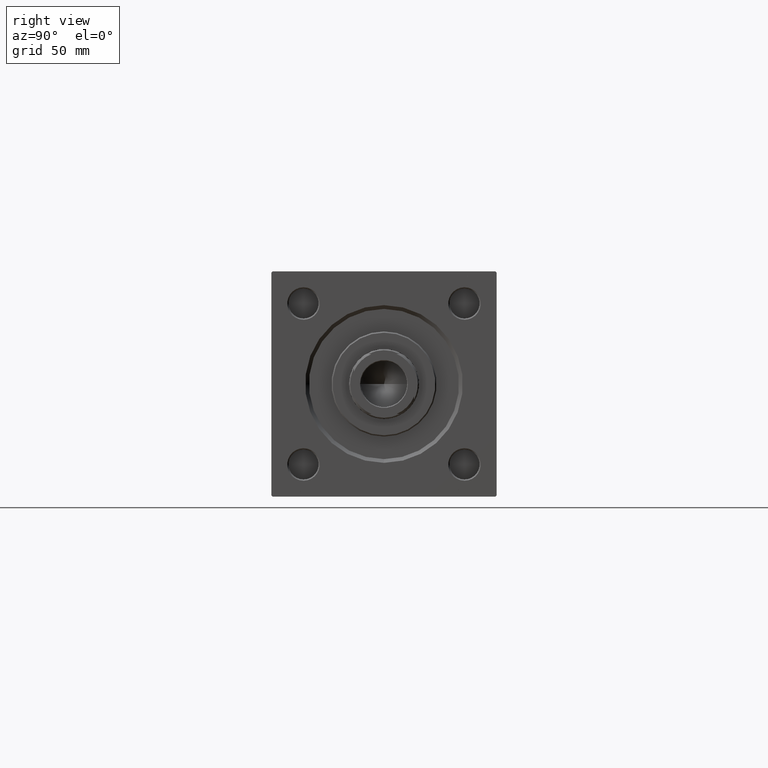
[diagram: clean part render]
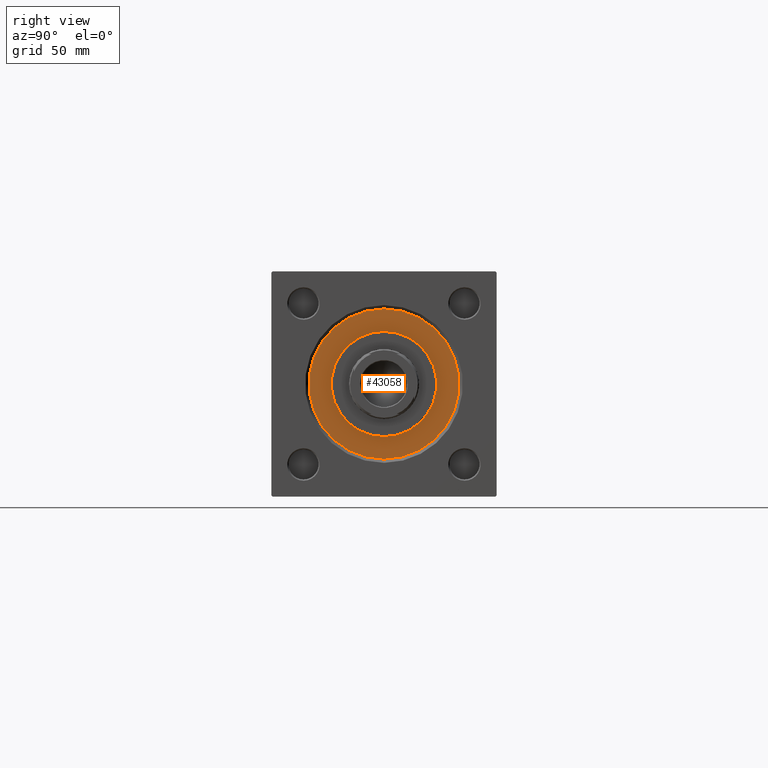
[diagram: same view with one face highlighted and labeled with its STEP entity id]
A machine part, right view. The second image highlights one B-rep face of the part: STEP entity #43058.
In plain terms, the highlighted planar face has unit normal (1, 0, 0).
Its self-contained STEP definition (entity closure, byte-faithful):
#2780 = DIRECTION ( 'NONE',  ( 1.000000000000000000, 0.000000000000000000, 0.000000000000000000 ) ) ;
#2934 = CIRCLE ( 'NONE', #7894, 21.00000000000000000 ) ;
#3018 = ORIENTED_EDGE ( 'NONE', *, *, #24465, .F. ) ;
#3630 = CIRCLE ( 'NONE', #37641, 21.00000000000000000 ) ;
#4984 = ORIENTED_EDGE ( 'NONE', *, *, #24445, .T. ) ;
#6436 = DIRECTION ( 'NONE',  ( 0.000000000000000000, 0.000000000000000000, 1.000000000000000000 ) ) ;
#7095 = CIRCLE ( 'NONE', #51078, 30.00000000000000000 ) ;
#7894 = AXIS2_PLACEMENT_3D ( 'NONE', #18114, #6436, #38106 ) ;
#7930 = DIRECTION ( 'NONE',  ( 1.000000000000000000, 0.000000000000000000, 0.000000000000000000 ) ) ;
#8528 = VERTEX_POINT ( 'NONE', #16858 ) ;
#16340 = DIRECTION ( 'NONE',  ( 1.000000000000000000, 0.000000000000000000, 0.000000000000000000 ) ) ;
#16858 = CARTESIAN_POINT ( 'NONE',  ( 21.00000000000000000, 2.571758278209441661E-15, 28.69999999999999929 ) ) ;
#17531 = CIRCLE ( 'NONE', #46577, 30.00000000000000000 ) ;
#17534 = ORIENTED_EDGE ( 'NONE', *, *, #21198, .F. ) ;
#18114 = CARTESIAN_POINT ( 'NONE',  ( 0.000000000000000000, 0.000000000000000000, 28.69999999999999929 ) ) ;
#20687 = EDGE_LOOP ( 'NONE', ( #3018, #17534 ) ) ;
#21198 = EDGE_CURVE ( 'NONE', #8528, #44740, #3630, .T. ) ;
#22186 = DIRECTION ( 'NONE',  ( 1.000000000000000000, 0.000000000000000000, -0.000000000000000000 ) ) ;
#22690 = CARTESIAN_POINT ( 'NONE',  ( 0.000000000000000000, 0.000000000000000000, 28.69999999999999929 ) ) ;
#24136 = AXIS2_PLACEMENT_3D ( 'NONE', #22690, #30985, #22186 ) ;
#24445 = EDGE_CURVE ( 'NONE', #46481, #41168, #7095, .T. ) ;
#24465 = EDGE_CURVE ( 'NONE', #44740, #8528, #2934, .T. ) ;
#26578 = FACE_OUTER_BOUND ( 'NONE', #30551, .T. ) ;
#26665 = CARTESIAN_POINT ( 'NONE',  ( 30.00000000000000000, 3.673940397442059178E-15, 28.69999999999999929 ) ) ;
#27654 = CARTESIAN_POINT ( 'NONE',  ( 0.000000000000000000, 0.000000000000000000, 28.69999999999999929 ) ) ;
#28011 = CARTESIAN_POINT ( 'NONE',  ( 0.000000000000000000, 0.000000000000000000, 28.69999999999999929 ) ) ;
#30551 = EDGE_LOOP ( 'NONE', ( #44954, #4984 ) ) ;
#30985 = DIRECTION ( 'NONE',  ( 0.000000000000000000, 0.000000000000000000, 1.000000000000000000 ) ) ;
#37641 = AXIS2_PLACEMENT_3D ( 'NONE', #28011, #43873, #16340 ) ;
#38106 = DIRECTION ( 'NONE',  ( 1.000000000000000000, 0.000000000000000000, 0.000000000000000000 ) ) ;
#38368 = DIRECTION ( 'NONE',  ( 0.000000000000000000, 0.000000000000000000, 1.000000000000000000 ) ) ;
#38552 = FACE_BOUND ( 'NONE', #20687, .T. ) ;
#38629 = CARTESIAN_POINT ( 'NONE',  ( 0.000000000000000000, 0.000000000000000000, 28.69999999999999929 ) ) ;
#41168 = VERTEX_POINT ( 'NONE', #46786 ) ;
#42445 = PLANE ( 'NONE',  #24136 ) ;
#42982 = EDGE_CURVE ( 'NONE', #41168, #46481, #17531, .T. ) ;
#43058 = ADVANCED_FACE ( 'NONE', ( #38552, #26578 ), #42445, .T. ) ;
#43518 = DIRECTION ( 'NONE',  ( 0.000000000000000000, 0.000000000000000000, 1.000000000000000000 ) ) ;
#43815 = CARTESIAN_POINT ( 'NONE',  ( -21.00000000000000000, 0.000000000000000000, 28.69999999999999929 ) ) ;
#43873 = DIRECTION ( 'NONE',  ( 0.000000000000000000, 0.000000000000000000, 1.000000000000000000 ) ) ;
#44740 = VERTEX_POINT ( 'NONE', #43815 ) ;
#44954 = ORIENTED_EDGE ( 'NONE', *, *, #42982, .T. ) ;
#46481 = VERTEX_POINT ( 'NONE', #26665 ) ;
#46577 = AXIS2_PLACEMENT_3D ( 'NONE', #27654, #43518, #7930 ) ;
#46786 = CARTESIAN_POINT ( 'NONE',  ( -30.00000000000000000, 0.000000000000000000, 28.69999999999999929 ) ) ;
#51078 = AXIS2_PLACEMENT_3D ( 'NONE', #38629, #38368, #2780 ) ;